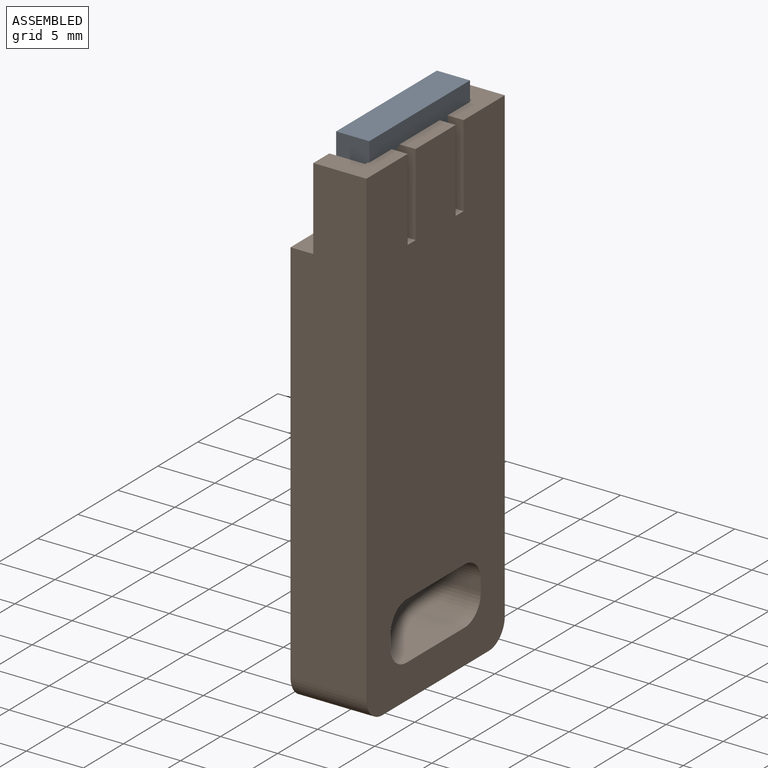
[diagram: assembled view]
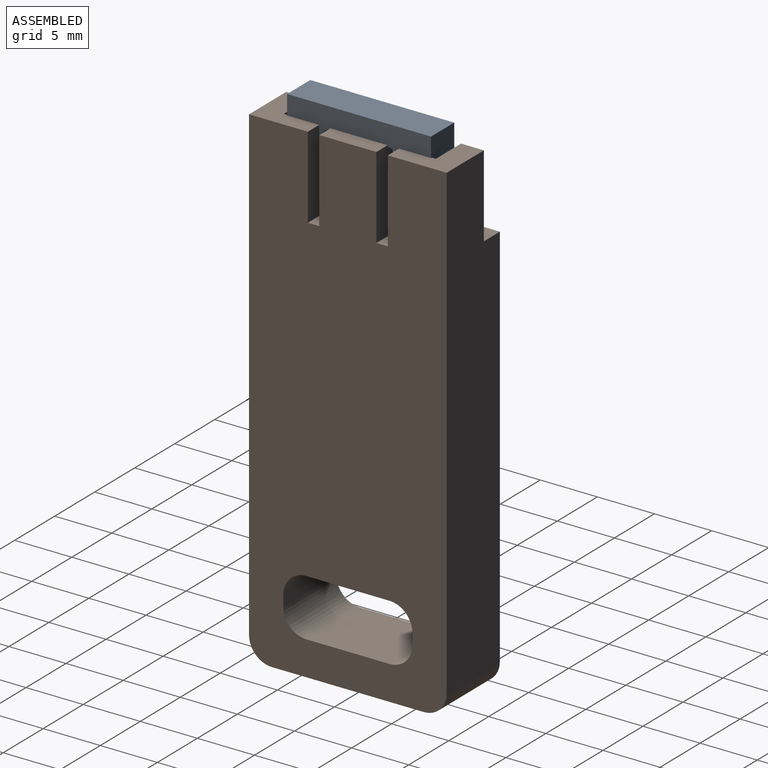
[diagram: assembled view, second angle]
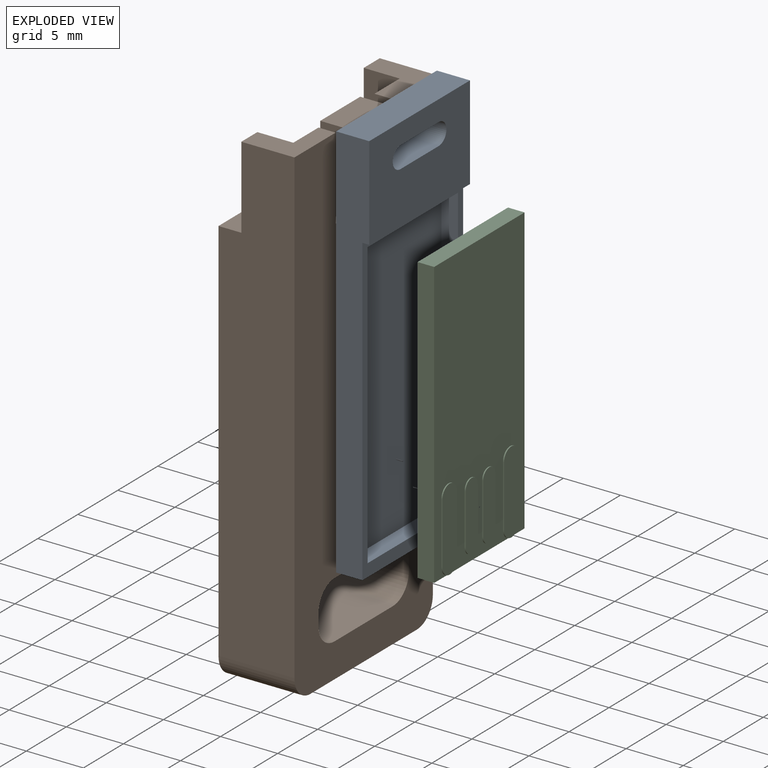
[diagram: exploded view]
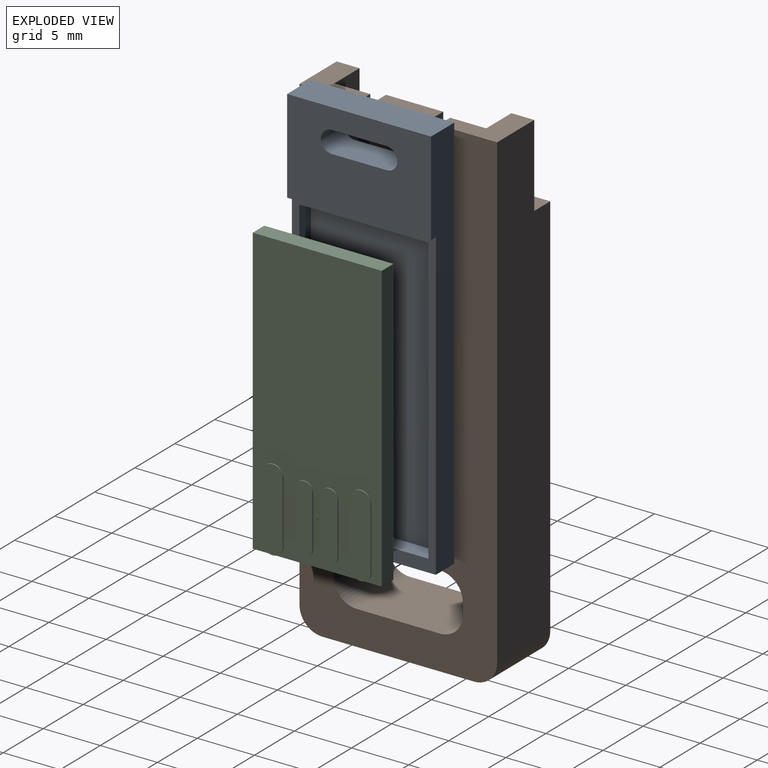
[diagram: exploded view, second angle]
ASSEMBLY  parts=3 mates=2
PART A: 17 faces, bbox 12.6x34.9x2.9 mm
  f0: plane 34.9x12.6mm, normal (0,0,-1), area 427.8mm2, adj f3,f6,f7,f8,f13,f14,f15,f16
  f1: plane 12.6x8.2mm, normal (0,0,1), area 91.4mm2, adj f3,f6,f8,f12,f13,f14,f15,f16
  f2: plane 26.7x12.6mm, normal (0,0,1), area 53.9mm2, adj f3,f4,f5,f7,f8,f9,f10,f12
  f3: plane 34.9x2.9mm, normal (-1,0,0), area 85.2mm2, adj f0,f1,f2,f6,f7,f12
  f4: plane 25x1.45mm, normal (-1,0,0), area 36.2mm2, adj f2,f5,f9,f11
  f5: plane 11.3x1.45mm, normal (0,-1,0), area 16.4mm2, adj f2,f4,f10,f11
  f6: plane 12.6x2.9mm, normal (0,-1,0), area 36.5mm2, adj f0,f1,f3,f8
  f7: plane 12.6x2.3mm, normal (0,1,0), area 29mm2, adj f0,f2,f3,f8
  f8: plane 34.9x2.9mm, normal (1,0,0), area 85.2mm2, adj f0,f1,f2,f6,f7,f12
  f9: plane 11.3x1.45mm, normal (0,1,0), area 16.4mm2, adj f2,f4,f10,f11
  f10: plane 25x1.45mm, normal (1,0,0), area 36.2mm2, adj f2,f5,f9,f11
  f11: plane 25x11.3mm, normal (0,0,1), area 282.5mm2, adj f4,f5,f9,f10
  f12: plane 12.6x0.6mm, normal (0,1,0), area 7.6mm2, adj f1,f2,f3,f8
  f13: plane 4.8x2.9mm, normal (0,-1,0), area 13.9mm2, adj f0,f1,f14,f16
  f14: cylinder r=0.95mm len=2.9mm, axis (0,0,1), area 8.7mm2, adj f0,f1,f13,f15
  f15: plane 4.8x2.9mm, normal (0,1,0), area 13.9mm2, adj f0,f1,f14,f16
  f16: cylinder r=0.95mm len=2.9mm, axis (0,0,1), area 8.7mm2, adj f0,f1,f13,f15
PART B: 37 faces, bbox 6.7x17.3x43.2 mm
  f0: plane 7.3x6.65mm, normal (0,0,-1), area 48.5mm2, adj f5,f7,f33,f35
  f1: plane 13.3x2mm, normal (0,0,1), area 9.6mm2, adj f3,f7,f9,f10,f11,f13,f14,f20
  f2: plane 17.3x2mm, normal (0,0,1), area 34.6mm2, adj f4,f5,f6,f8,f22,f26
  f3: plane 5.31x5mm, normal (-1,0,0), area 26.6mm2, adj f1,f13,f14,f18
  f4: plane 41.2x6.65mm, normal (0,1,0), area 259.6mm2, adj f2,f5,f7,f19,f22,f32
  f5: plane 36x17.3mm, normal (-1,0,0), area 568mm2, adj f0,f2,f4,f6,f27,f28,f29,f30
  f6: plane 41.2x6.65mm, normal (0,-1,0), area 259.6mm2, adj f2,f5,f7,f23,f26,f31
  f7: plane 43.2x17.3mm, normal (1,0,0), area 678.2mm2, adj f0,f1,f4,f6,f13,f14,f15,f19
  f8: plane 26x13.3mm, normal (1,0,0), area 345.8mm2, adj f2,f9,f11,f12
  f9: plane 33.2x3.15mm, normal (0,-1,0), area 91.6mm2, adj f1,f8,f10,f12,f19,f20,f22
  f10: plane 26x13.3mm, normal (-1,0,0), area 345.8mm2, adj f1,f9,f11,f12
  f11: plane 33.2x3.15mm, normal (0,1,0), area 91.6mm2, adj f1,f8,f10,f12,f23,f25,f26
  f12: plane 13.3x2.65mm, normal (0,0,1), area 35.2mm2, adj f8,f9,f10,f11
  f13: plane 7.2x2.05mm, normal (0,1,0), area 11.6mm2, adj f1,f3,f7,f15,f16,f17,f18
  f14: plane 7.2x2.05mm, normal (0,-1,0), area 11.6mm2, adj f1,f3,f7,f15,f16,f17,f18
  f15: plane 5x2.05mm, normal (0,0,1), area 10.2mm2, adj f7,f13,f14,f16
  f16: plane 5x1mm, normal (-1,0,0), area 5mm2, adj f13,f14,f15,f17
  f17: cylinder r=0.5mm len=5mm, axis (0,-1,0), area 2.5mm2, adj f13,f14,f16,f18
  f18: cylinder r=0.5mm len=5mm, axis (0,-1,0), area 3mm2, adj f3,f13,f14,f17
  f19: plane 5.15x4.65mm, normal (0,0,1), area 14mm2, adj f4,f7,f9,f20,f21,f22
  f20: plane 7.2x3.15mm, normal (-1,0,0), area 22.7mm2, adj f1,f9,f19,f21
  f21: plane 7.2x1.5mm, normal (0,-1,0), area 10.8mm2, adj f1,f7,f19,f20
  f22: plane 7.2x2mm, normal (-1,0,0), area 14.4mm2, adj f2,f4,f9,f19
  f23: plane 5.15x4.65mm, normal (0,0,1), area 14mm2, adj f6,f7,f11,f24,f25,f26
  f24: plane 7.2x1.5mm, normal (0,1,0), area 10.8mm2, adj f1,f7,f23,f25
  f25: plane 7.2x3.15mm, normal (-1,0,0), area 22.7mm2, adj f1,f11,f23,f24
  f26: plane 7.2x2mm, normal (-1,0,0), area 14.4mm2, adj f2,f6,f11,f23
  f27: plane 13.3x6.65mm, normal (0,0,-1), area 88.4mm2, adj f5,f7,f31,f32
  f28: plane 6.65x1mm, normal (0,-1,0), area 6.6mm2, adj f5,f7,f33,f34
  f29: plane 7.3x6.65mm, normal (0,0,1), area 48.5mm2, adj f5,f7,f34,f36
  f30: plane 6.65x1mm, normal (0,1,0), area 6.6mm2, adj f5,f7,f35,f36
  f31: cylinder r=2mm len=6.65mm, axis (1,0,0), area 20.9mm2, adj f5,f6,f7,f27
  f32: cylinder r=2mm len=6.65mm, axis (-1,0,0), area 20.9mm2, adj f4,f5,f7,f27
  f33: cylinder r=2mm len=6.65mm, axis (1,0,0), area 20.9mm2, adj f0,f5,f7,f28
  f34: cylinder r=2mm len=6.65mm, axis (1,0,0), area 20.9mm2, adj f5,f7,f28,f29
  f35: cylinder r=2mm len=6.65mm, axis (-1,0,0), area 20.9mm2, adj f0,f5,f7,f30
  f36: cylinder r=2mm len=6.65mm, axis (-1,0,0), area 20.9mm2, adj f5,f7,f29,f30
PART C: 26 faces, bbox 11.3x25x1.6 mm
  f0: plane 25x11.3mm, normal (0,0,1), area 240.9mm2, adj f1,f2,f3,f4,f6,f7,f8,f9
  f1: plane 25x1.45mm, normal (-1,0,0), area 36.2mm2, adj f0,f2,f4,f5
  f2: plane 11.3x1.45mm, normal (0,-1,0), area 16.4mm2, adj f0,f1,f3,f5
  f3: plane 25x1.45mm, normal (1,0,0), area 36.2mm2, adj f0,f2,f4,f5
  f4: plane 11.3x1.45mm, normal (0,1,0), area 16.4mm2, adj f0,f1,f3,f5
  f5: plane 25x11.3mm, normal (0,0,-1), area 282.5mm2, adj f1,f2,f3,f4
  f6: plane 5.4x0.1mm, normal (1,0,0), area 0.5mm2, adj f0,f7,f9,f10
  f7: cylinder r=0.9mm len=1.8mm, axis (0,0,-1), area 0.3mm2, adj f0,f6,f8,f10
  f8: plane 5.4x0.1mm, normal (-1,0,0), area 0.5mm2, adj f0,f7,f9,f10
  f9: cylinder r=0.9mm len=1.8mm, axis (0,0,-1), area 0.3mm2, adj f0,f6,f8,f10
  f10: plane 7.2x1.8mm, normal (0,0,1), area 12.3mm2, adj f6,f7,f8,f9
  f11: cylinder r=0.75mm len=1.5mm, axis (0,0,-1), area 0.2mm2, adj f0,f12,f14,f15
  f12: plane 4.5x0.1mm, normal (-1,0,0), area 0.5mm2, adj f0,f11,f13,f15
  f13: cylinder r=0.75mm len=1.5mm, axis (0,0,-1), area 0.2mm2, adj f0,f12,f14,f15
  f14: plane 4.5x0.1mm, normal (1,0,0), area 0.5mm2, adj f0,f11,f13,f15
  f15: plane 6x1.5mm, normal (0,0,1), area 8.5mm2, adj f11,f12,f13,f14
  f16: cylinder r=0.9mm len=1.8mm, axis (0,0,-1), area 0.3mm2, adj f0,f17,f19,f20
  f17: plane 5.4x0.1mm, normal (-1,0,0), area 0.5mm2, adj f0,f16,f18,f20
  f18: cylinder r=0.9mm len=1.8mm, axis (0,0,-1), area 0.3mm2, adj f0,f17,f19,f20
  f19: plane 5.4x0.1mm, normal (1,0,0), area 0.5mm2, adj f0,f16,f18,f20
  f20: plane 7.2x1.8mm, normal (0,0,1), area 12.3mm2, adj f16,f17,f18,f19
  f21: cylinder r=0.75mm len=1.5mm, axis (0,0,-1), area 0.2mm2, adj f0,f22,f24,f25
  f22: plane 4.5x0.1mm, normal (-1,0,0), area 0.5mm2, adj f0,f21,f23,f25
  f23: cylinder r=0.75mm len=1.5mm, axis (0,0,-1), area 0.2mm2, adj f0,f22,f24,f25
  f24: plane 4.5x0.1mm, normal (1,0,0), area 0.5mm2, adj f0,f21,f23,f25
  f25: plane 6x1.5mm, normal (0,0,1), area 8.5mm2, adj f21,f22,f23,f24
PLACE A rot(axis=(-0.58,0.58,-0.58),120deg) t=(-0.13,0,13.6)mm
PLACE B at identity
PLACE C rot(axis=(-0.58,0.58,-0.58),120deg) t=(-0.12,0,13.6)mm
MATE fastened A.f2 <-> B.f10  axis (1,0,0) through (1.32,0,0)mm
MATE fastened C.f5 <-> A.f11  axis (-1,0,0) through (-0.12,0,13.6)mm
